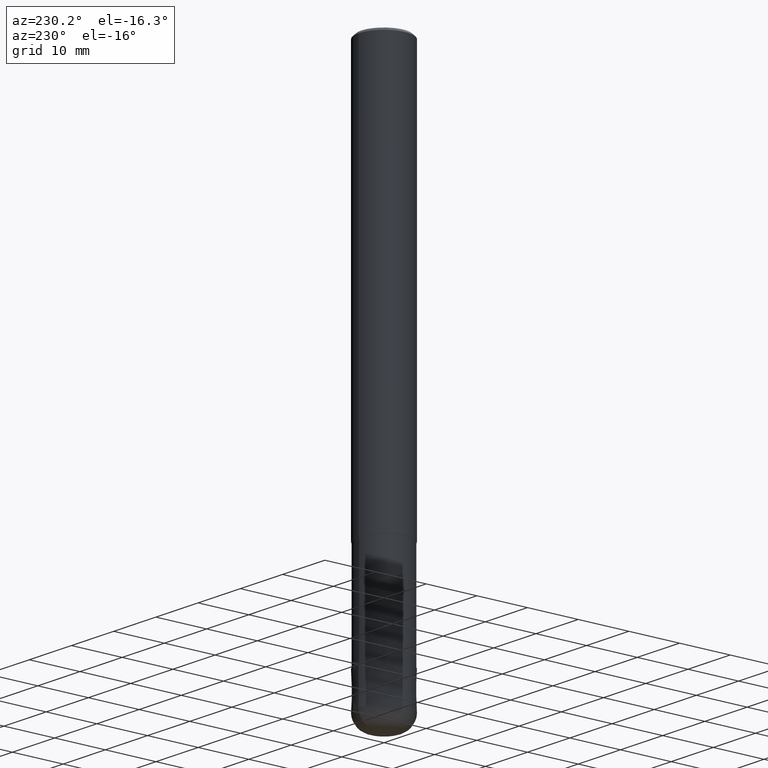
[diagram: clean part render]
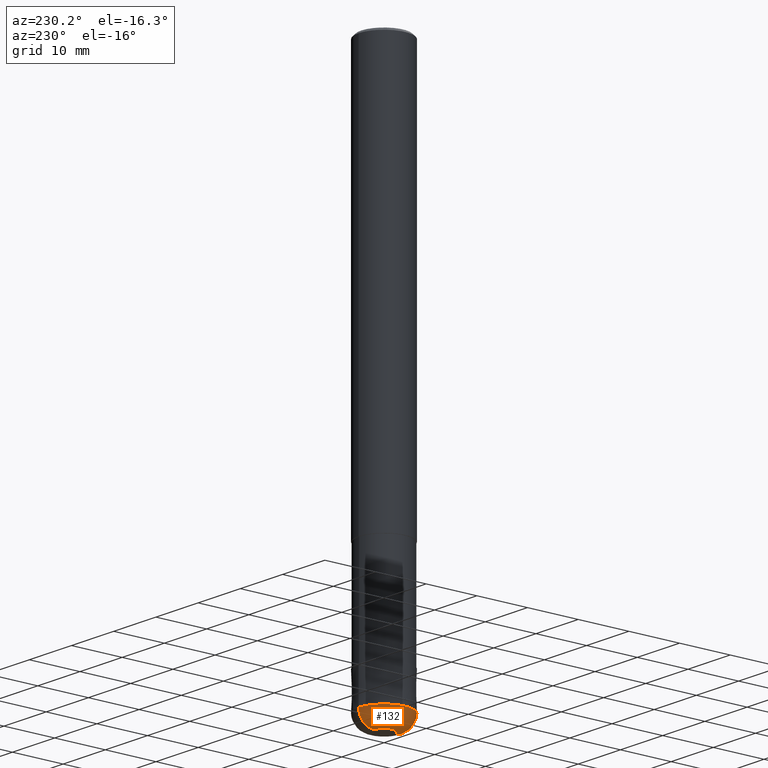
[diagram: same view with one face highlighted and labeled with its STEP entity id]
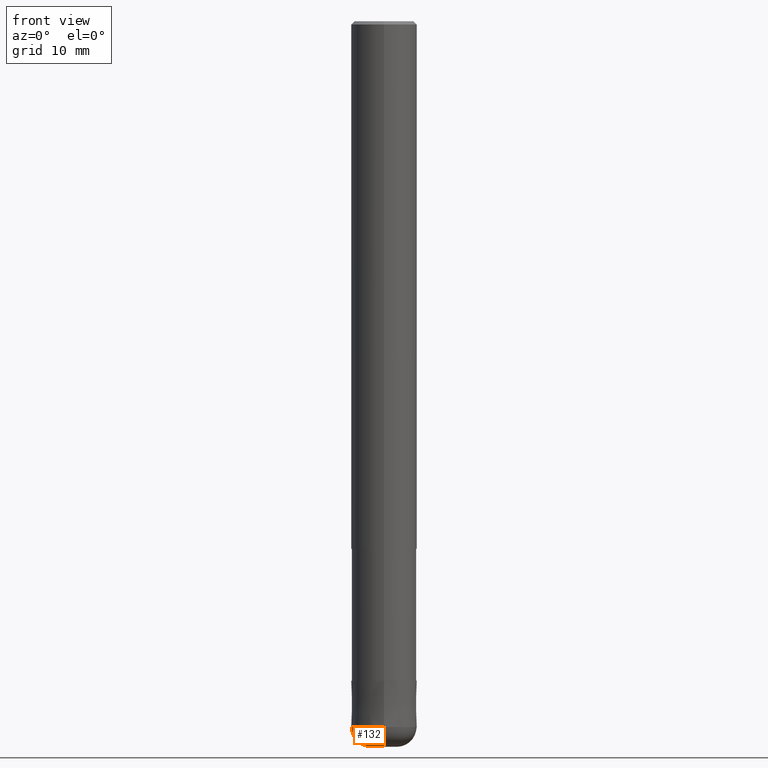
[diagram: same view with one face highlighted and labeled with its STEP entity id]
A machine part, auxiliary view. The second image highlights one B-rep face of the part: STEP entity #132.
A second angle (front view) of the same face is appended — the face is thin or edge-on in the first view.
In plain terms, the highlighted toroidal blend (fillet) surface has major radius 2 mm and minor (blend) radius 3 mm.
Its self-contained STEP definition (entity closure, byte-faithful):
#116=VERTEX_POINT('',#255);
#120=VERTEX_POINT('',#259);
#126=VERTEX_POINT('',#266);
#132=ADVANCED_FACE('',(#272),#273,.T.);
#140=EDGE_CURVE('',#162,#116,#282,.T.);
#146=EDGE_CURVE('',#120,#126,#289,.T.);
#162=VERTEX_POINT('',#306);
#180=EDGE_CURVE('',#126,#162,#329,.T.);
#202=EDGE_CURVE('',#120,#116,#353,.T.);
#255=CARTESIAN_POINT('',(0.0,5.0,-107.0));
#259=CARTESIAN_POINT('',(6.12303176911189E-016,-5.0,-107.0));
#266=CARTESIAN_POINT('',(2.44921270764476E-016,-2.0,-110.0));
#272=FACE_OUTER_BOUND('',#425,.T.);
#273=TOROIDAL_SURFACE('',#426,2.0,3.0);
#282=CIRCLE('',#439,3.0);
#289=CIRCLE('',#448,3.0);
#306=CARTESIAN_POINT('',(0.0,2.0,-110.0));
#329=CIRCLE('',#498,2.0);
#353=CIRCLE('',#529,5.0);
#425=EDGE_LOOP('',(#577,#578,#579,#580));
#426=AXIS2_PLACEMENT_3D('',#581,#582,#583);
#439=AXIS2_PLACEMENT_3D('',#594,#595,#596);
#448=AXIS2_PLACEMENT_3D('',#608,#609,#610);
#498=AXIS2_PLACEMENT_3D('',#664,#665,#666);
#529=AXIS2_PLACEMENT_3D('',#696,#697,#698);
#577=ORIENTED_EDGE('',*,*,#146,.F.);
#578=ORIENTED_EDGE('',*,*,#202,.T.);
#579=ORIENTED_EDGE('',*,*,#140,.F.);
#580=ORIENTED_EDGE('',*,*,#180,.F.);
#581=CARTESIAN_POINT('',(0.0,0.0,-107.0));
#582=DIRECTION('',(0.0,0.0,-1.0));
#583=DIRECTION('',(0.0,-1.0,0.0));
#594=CARTESIAN_POINT('',(-2.44921270764475E-016,2.0,-107.0));
#595=DIRECTION('',(1.0,1.22460635382238E-016,0.0));
#596=DIRECTION('',(-1.22460635382238E-016,1.0,0.0));
#608=CARTESIAN_POINT('',(2.44921270764475E-016,-2.0,-107.0));
#609=DIRECTION('',(1.0,1.22460635382238E-016,0.0));
#610=DIRECTION('',(1.22460635382238E-016,-1.0,-0.0));
#664=CARTESIAN_POINT('',(0.0,0.0,-110.0));
#665=DIRECTION('',(0.0,0.0,-1.0));
#666=DIRECTION('',(0.0,1.0,0.0));
#696=CARTESIAN_POINT('',(0.0,0.0,-107.0));
#697=DIRECTION('',(0.0,0.0,-1.0));
#698=DIRECTION('',(0.0,1.0,0.0));